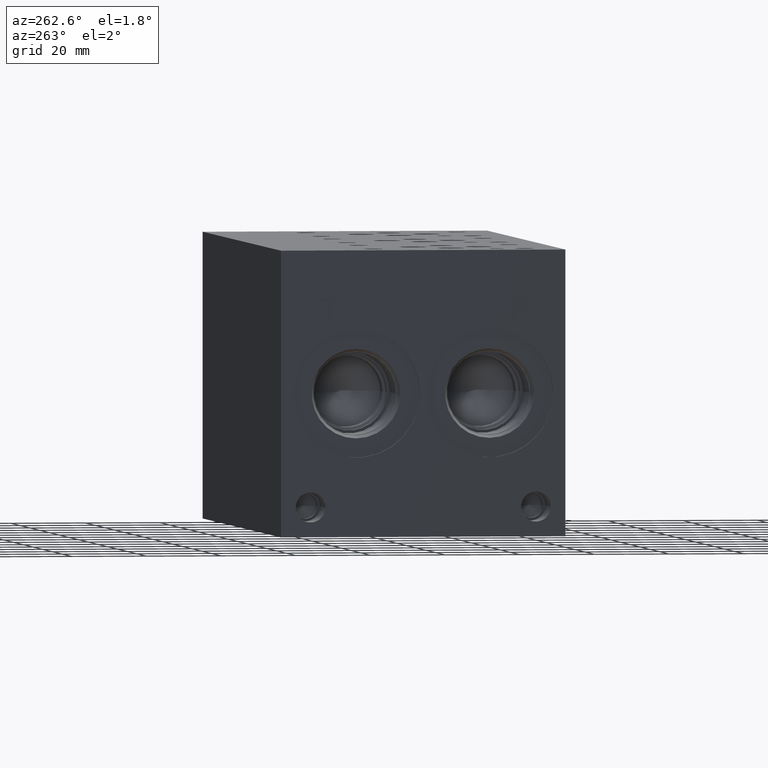
[diagram: clean part render]
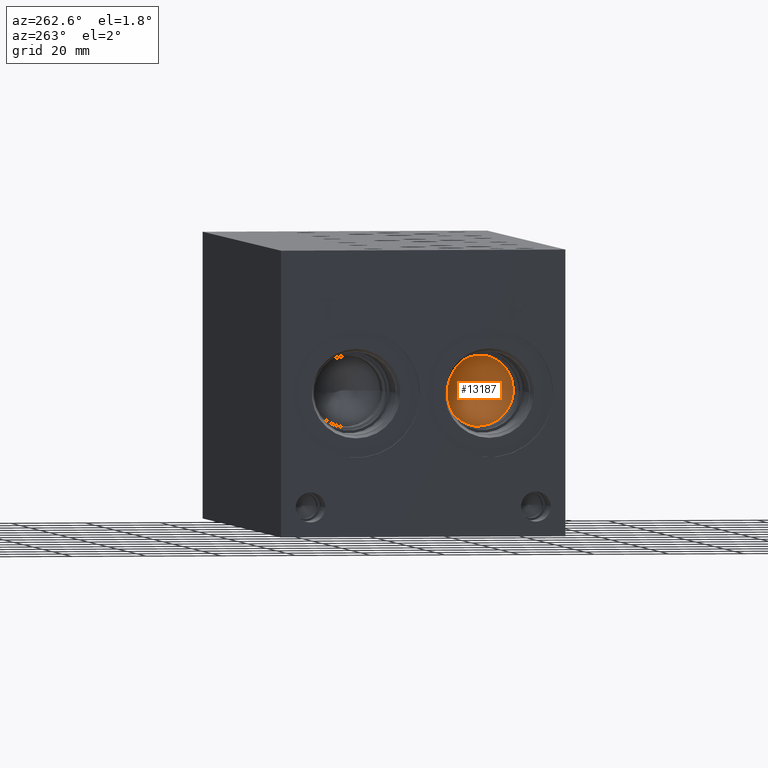
[diagram: same view with one face highlighted and labeled with its STEP entity id]
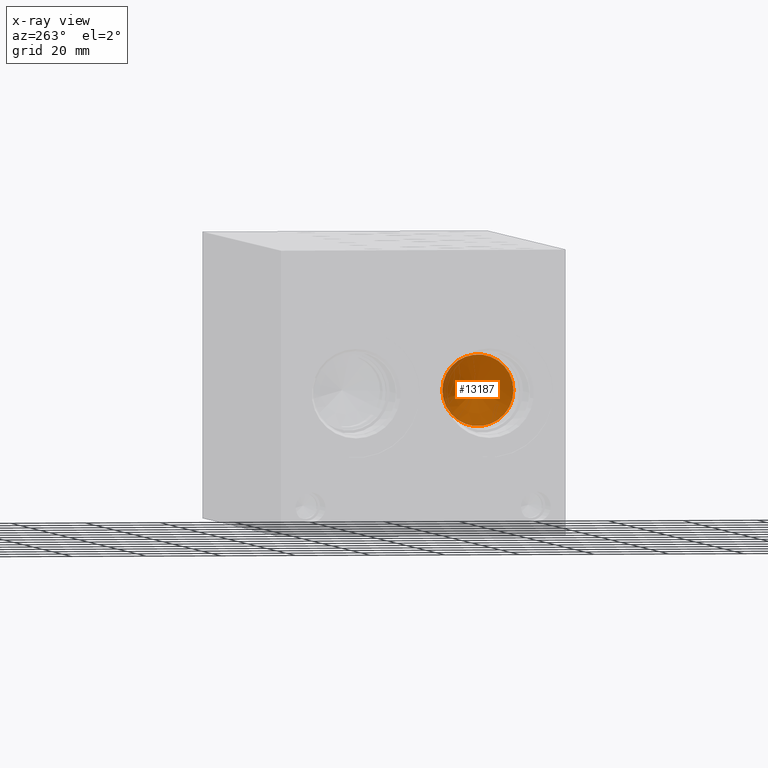
[diagram: x-ray of the same camera — body ghosted, the highlighted face saturated]
A machine part, auxiliary view. The second image highlights one B-rep face of the part: STEP entity #13187.
The next image is the same camera in x-ray: the body ghosted, the highlighted face saturated — about 4% of this face is hidden behind the body in this view.
In plain terms, the highlighted conical surface has half-angle 60 deg.
Its self-contained STEP definition (entity closure, byte-faithful):
#120=CONICAL_SURFACE('',#13831,4.7625,1.0471975511966);
#271=CIRCLE('',#13832,9.525);
#272=CIRCLE('',#13833,9.525);
#1555=FACE_OUTER_BOUND('',#2313,.T.);
#2313=EDGE_LOOP('',(#11208,#11209,#11210,#11211));
#3584=LINE('',#22215,#4768);
#4768=VECTOR('',#16250,4.7625);
#6197=VERTEX_POINT('',#22211);
#6198=VERTEX_POINT('',#22212);
#6199=VERTEX_POINT('',#22214);
#7950=EDGE_CURVE('',#6197,#6198,#271,.T.);
#7951=EDGE_CURVE('',#6198,#6199,#3584,.T.);
#7952=EDGE_CURVE('',#6198,#6197,#272,.T.);
#11208=ORIENTED_EDGE('',*,*,#7950,.T.);
#11209=ORIENTED_EDGE('',*,*,#7951,.T.);
#11210=ORIENTED_EDGE('',*,*,#7951,.F.);
#11211=ORIENTED_EDGE('',*,*,#7952,.T.);
#13187=ADVANCED_FACE('',(#1555),#120,.F.);
#13831=AXIS2_PLACEMENT_3D('',#22210,#16246,#16247);
#13832=AXIS2_PLACEMENT_3D('',#22213,#16248,#16249);
#13833=AXIS2_PLACEMENT_3D('',#22216,#16251,#16252);
#16246=DIRECTION('center_axis',(-1.,0.,0.));
#16247=DIRECTION('ref_axis',(0.,1.,0.));
#16248=DIRECTION('center_axis',(-1.,0.,0.));
#16249=DIRECTION('ref_axis',(0.,1.,0.));
#16250=DIRECTION('',(0.5,0.866025403784439,-1.06057523872491E-16));
#16251=DIRECTION('center_axis',(-1.,0.,0.));
#16252=DIRECTION('ref_axis',(0.,1.,0.));
#22210=CARTESIAN_POINT('Origin',(27.4892306570156,20.2438,38.1));
#22211=CARTESIAN_POINT('',(24.7396,29.7688,38.1));
#22212=CARTESIAN_POINT('',(24.7396,10.7188,38.1));
#22213=CARTESIAN_POINT('Origin',(24.7396,20.2438,38.1));
#22214=CARTESIAN_POINT('',(30.2388613140312,20.2438,38.1));
#22215=CARTESIAN_POINT('',(27.4892306570156,15.4813,38.1));
#22216=CARTESIAN_POINT('Origin',(24.7396,20.2438,38.1));